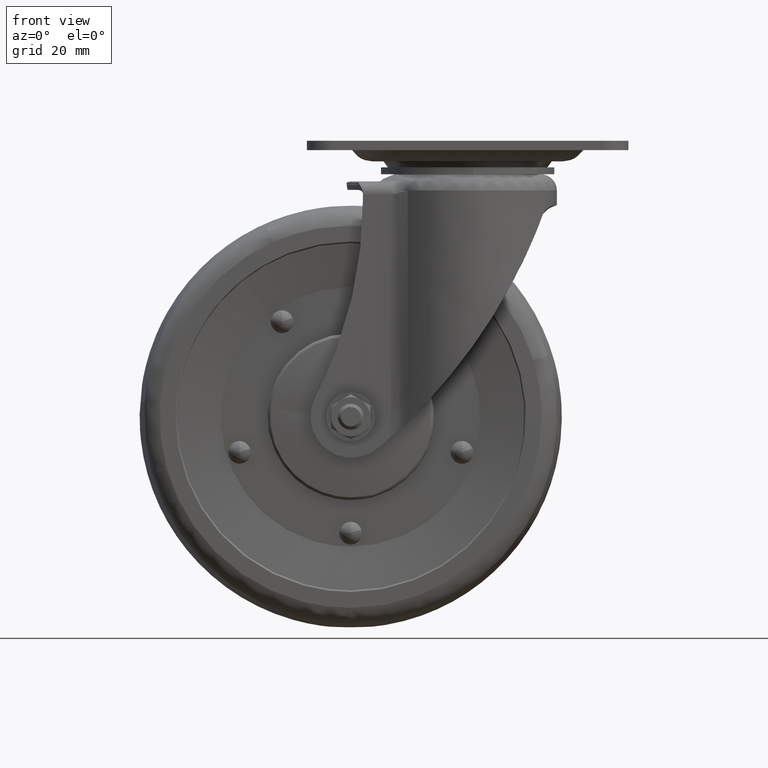
[diagram: clean part render]
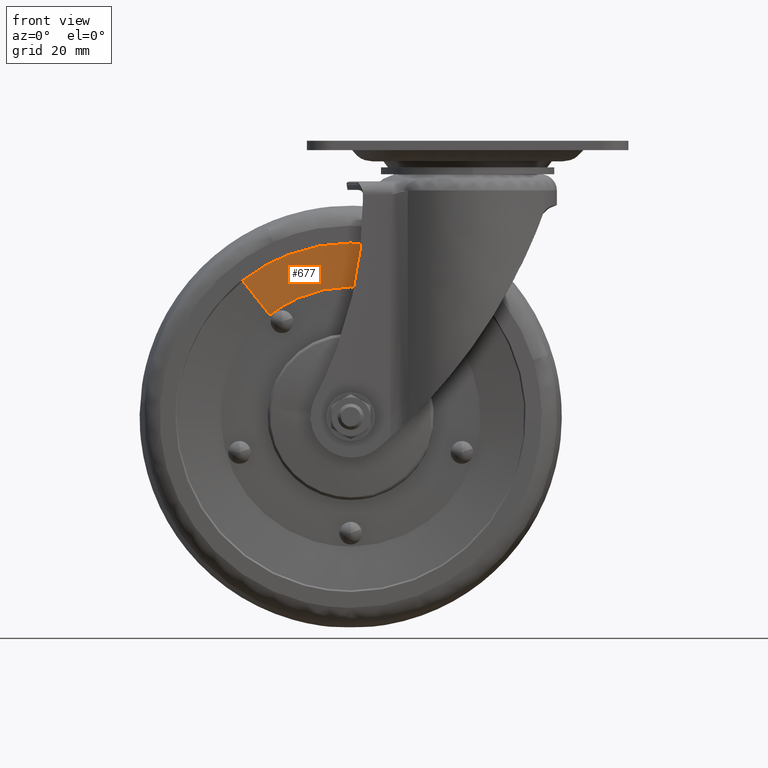
[diagram: same view with one face highlighted and labeled with its STEP entity id]
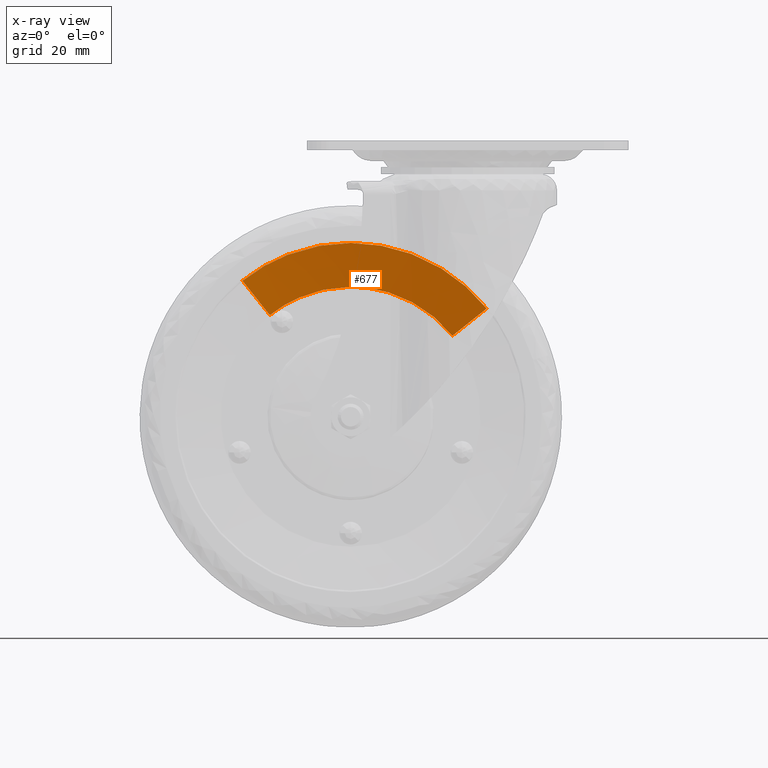
[diagram: x-ray of the same camera — body ghosted, the highlighted face saturated]
A machine part, front view. The second image highlights one B-rep face of the part: STEP entity #677.
The next image is the same camera in x-ray: the body ghosted, the highlighted face saturated — about 0% of this face is hidden behind the body in this view.
In plain terms, the highlighted face is a freeform B-spline surface patch.
Its self-contained STEP definition (entity closure, byte-faithful):
#490=CARTESIAN_POINT('',(-69.304530576452294,-12.000000059171370,-43.280470730814237));
#491=VERTEX_POINT('',#490);
#537=CARTESIAN_POINT('',(5.869533261160523,-12.000000000000110,-51.845473429931097));
#538=VERTEX_POINT('',#537);
#554=CARTESIAN_POINT('',(-4.695676856357197,-9.500000000000194,-60.249421024525418));
#555=VERTEX_POINT('',#554);
#556=CARTESIAN_POINT('',(-4.695676856357197,-9.500000000000194,-60.249421024525418));
#557=CARTESIAN_POINT('',(5.869533261160523,-12.000000000000110,-51.845473429931097));
#558=QUASI_UNIFORM_CURVE('',1,(#556,#557),.UNSPECIFIED.,.F.,.U.);
#559=EDGE_CURVE('',#555,#538,#558,.T.);
#578=CARTESIAN_POINT('',(-60.900582975519598,-9.500000000000480,-53.845680856391027));
#579=VERTEX_POINT('',#578);
#595=CARTESIAN_POINT('',(-60.900582975519598,-9.500000000000480,-53.845680856391027));
#596=CARTESIAN_POINT('',(-69.304530576452294,-12.000000059171370,-43.280470730814237));
#597=QUASI_UNIFORM_CURVE('',1,(#595,#596),.UNSPECIFIED.,.F.,.U.);
#598=EDGE_CURVE('',#579,#491,#597,.T.);
#603=CARTESIAN_POINT('',(-4.959807164942312,-9.437499986827392,-60.459519758699621));
#604=CARTESIAN_POINT('',(-29.650291406242591,-9.437499986827392,-29.419326923641929));
#605=CARTESIAN_POINT('',(-60.690484241300283,-9.437499986827392,-54.109811164942208));
#606=CARTESIAN_POINT('',(6.140269054234295,-12.064063040406131,-51.630120456216112));
#607=CARTESIAN_POINT('',(-27.379614489549496,-12.064063040406129,-9.489851401981809));
#608=CARTESIAN_POINT('',(-69.519883543783791,-12.064063040406131,-43.009734945765601));
#616=(BOUNDED_SURFACE()B_SPLINE_SURFACE(2,1,((#603,#606),(#604,#607),(#605,#608)),.UNSPECIFIED.,.F.,.F.,.U.)B_SPLINE_SURFACE_WITH_KNOTS((3,3),(2,2),(0.0,89.214868572379601),(0.0,14.424590725169690),.UNSPECIFIED.)GEOMETRIC_REPRESENTATION_ITEM()RATIONAL_B_SPLINE_SURFACE(((1.0,1.0),(0.707106781186548,0.707106781186548),(1.0,1.0)))REPRESENTATION_ITEM('')SURFACE());
#617=CARTESIAN_POINT('',(-36.0,-12.0,-31.650007999999890));
#618=VERTEX_POINT('',#617);
#619=CARTESIAN_POINT('',(-36.0,-12.0,-31.650007999999890));
#620=CARTESIAN_POINT('',(-54.683034991210505,-11.999999999999996,-31.650007999999886));
#621=CARTESIAN_POINT('',(-69.304530576452294,-12.000000059171372,-43.280470730814244));
#629=(BOUNDED_CURVE()B_SPLINE_CURVE(2,(#619,#620,#621),.UNSPECIFIED.,.F.,.U.)B_SPLINE_CURVE_WITH_KNOTS((3,3),(0.500000000000000,0.607863877391550),.UNSPECIFIED.)CURVE()GEOMETRIC_REPRESENTATION_ITEM()RATIONAL_B_SPLINE_CURVE((1.0,0.873629607028358,0.856305618644037))REPRESENTATION_ITEM(''));
#630=EDGE_CURVE('',#618,#491,#629,.T.);
#631=ORIENTED_EDGE('',*,*,#630,.T.);
#632=ORIENTED_EDGE('',*,*,#598,.F.);
#633=CARTESIAN_POINT('',(-36.0,-9.500000000000000,-45.150007999999893));
#634=VERTEX_POINT('',#633);
#635=CARTESIAN_POINT('',(-36.0,-9.500000000000000,-45.150007999999893));
#636=CARTESIAN_POINT('',(-49.968623940102056,-9.500000000000002,-45.150007999999900));
#637=CARTESIAN_POINT('',(-60.900582975519598,-9.500000000000478,-53.845680856391027));
#645=(BOUNDED_CURVE()B_SPLINE_CURVE(2,(#635,#636,#637),.UNSPECIFIED.,.F.,.U.)B_SPLINE_CURVE_WITH_KNOTS((3,3),(0.500000000000000,0.607863877392140),.UNSPECIFIED.)CURVE()GEOMETRIC_REPRESENTATION_ITEM()RATIONAL_B_SPLINE_CURVE((1.0,0.873629607027666,0.856305618643847))REPRESENTATION_ITEM(''));
#646=EDGE_CURVE('',#634,#579,#645,.T.);
#647=ORIENTED_EDGE('',*,*,#646,.F.);
#648=CARTESIAN_POINT('',(-4.695676856357197,-9.500000000000194,-60.249421024525418));
#649=CARTESIAN_POINT('',(-16.706292296711599,-9.500000000000000,-45.150007999999900));
#650=CARTESIAN_POINT('',(-36.0,-9.500000000000000,-45.150007999999893));
#658=(BOUNDED_CURVE()B_SPLINE_CURVE(2,(#648,#649,#650),.UNSPECIFIED.,.F.,.U.)B_SPLINE_CURVE_WITH_KNOTS((3,3),(0.357863877391712,0.500000000000000),.UNSPECIFIED.)CURVE()GEOMETRIC_REPRESENTATION_ITEM()RATIONAL_B_SPLINE_CURVE((0.856305618643985,0.833477174158380,1.0))REPRESENTATION_ITEM(''));
#659=EDGE_CURVE('',#555,#634,#658,.T.);
#660=ORIENTED_EDGE('',*,*,#659,.F.);
#661=ORIENTED_EDGE('',*,*,#559,.T.);
#662=CARTESIAN_POINT('',(5.869533261160524,-12.000000000000114,-51.845473429931111));
#663=CARTESIAN_POINT('',(-10.194665295653550,-11.999999999999998,-31.650007999999900));
#664=CARTESIAN_POINT('',(-36.0,-12.0,-31.650007999999890));
#672=(BOUNDED_CURVE()B_SPLINE_CURVE(2,(#662,#663,#664),.UNSPECIFIED.,.F.,.U.)B_SPLINE_CURVE_WITH_KNOTS((3,3),(0.357863877391549,0.500000000000000),.UNSPECIFIED.)CURVE()GEOMETRIC_REPRESENTATION_ITEM()RATIONAL_B_SPLINE_CURVE((0.856305618644037,0.833477174158189,1.0))REPRESENTATION_ITEM(''));
#673=EDGE_CURVE('',#538,#618,#672,.T.);
#674=ORIENTED_EDGE('',*,*,#673,.T.);
#675=EDGE_LOOP('',(#631,#632,#647,#660,#661,#674));
#676=FACE_OUTER_BOUND('',#675,.T.);
#677=ADVANCED_FACE('',(#676),#616,.F.);